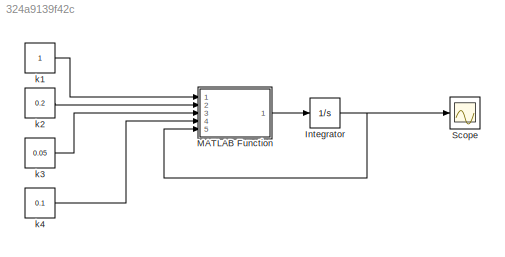
MODEL slx_324a9139f42c
KIND model
CONFIG AbsTol = auto
CONFIG EnableMultiTasking = off
CONFIG FixedStep = auto
CONFIG MaxStep = auto
CONFIG MinStep = auto
CONFIG RelTol = 1e-3
CONFIG SampleTimeConstraint = Unconstrained
CONFIG Solver = ode45
CONFIG SolverName = ode45
CONFIG StartTime = 0.0
CONFIG StopTime = 20
BLOCK [Integrator] Integrator
  InitialCondition = [1 0 0]
  Ports = [1, 1]
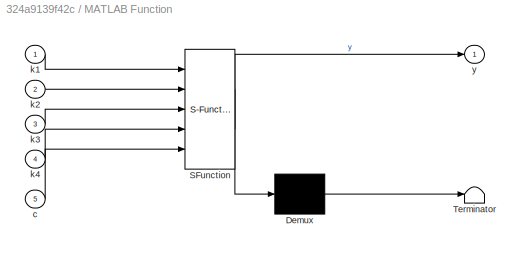
BLOCK [SubSystem] MATLAB Function
  ErrorFcn = Stateflow.Translate.translate
  PermitHierarchicalResolution = ExplicitOnly
  Ports = [5, 1]
  RequestExecContextInheritance = off
  SFBlockType = MATLAB Function
  TreatAsAtomicUnit = on
  Variant = off
BLOCK [Demux] MATLAB Function/ Demux 
  Outputs = 1
  Ports = [1, 1]
BLOCK [S-Function] MATLAB Function/ SFunction 
  EnableBusSupport = on
  FunctionName = sf_sfun
  PortCounts = [5 2]
  Ports = [5, 2]
  SFcnIsStateOwnerBlock = off
  SFunctionDeploymentMode = off
  Tag = Stateflow S-Function D3 2
BLOCK [Terminator] MATLAB Function/ Terminator 
BLOCK [Inport] MATLAB Function/c
  IconDisplay = Port number
  Port = 5
BLOCK [Inport] MATLAB Function/k1
  IconDisplay = Port number
BLOCK [Inport] MATLAB Function/k2
  IconDisplay = Port number
  Port = 2
BLOCK [Inport] MATLAB Function/k3
  IconDisplay = Port number
  Port = 3
BLOCK [Inport] MATLAB Function/k4
  IconDisplay = Port number
  Port = 4
BLOCK [Outport] MATLAB Function/y
  IconDisplay = Port number
BLOCK [Scope] Scope
  NumInputPorts = 1
  Ports = [1]
  ScopeSpecificationString = Simulink.scopes.TimeScopeBlockCfg('CurrentConfiguration', extmgr.ConfigurationSet(extmgr.Configuration('Core','General UI',true),extmgr.Configuration('Core','Source UI',true),extmgr.Configuration('Sources','WiredSimulink',true),extmgr.Configuration('Visuals','Time Domain',true,'SerializedDisplays',{struct('MinYLimReal','-0.18447','MaxYLimReal','1.66019','YLabelReal','','MinYLimMag','0.00000','MaxY...<+1362ch>
BLOCK [Constant] k1
BLOCK [Constant] k2
  Value = 0.2
BLOCK [Constant] k3
  Value = 0.05
BLOCK [Constant] k4
  Value = 0.1
NET Integrator:1 -> MATLAB Function:5, Scope:1
LINE MATLAB Function:1 -> Integrator:1
LINE k1:1 -> MATLAB Function:1
LINE k2:1 -> MATLAB Function:2
LINE k3:1 -> MATLAB Function:3
LINE k4:1 -> MATLAB Function:4
note: NET lines group one-source signal fan-out (src -> all destinations, sorted); 1:1 wires keep LINE
CHART MATLAB Function states=1 transitions=1
  STATE_LABEL 'eML_blk_kernel()'
  STATE_LABEL 'SCRIPT:\nfunction y = D3(k1,k2,k3,k4,c)\n\ny = [-k1*c(1)-k2*c(1)+k3*c(3);...\n    2*k1*c(1)-k4*c(2);...\n    k2*c(1)-k3*c(3)+k4*c(2)];\n\nend\n\n'
